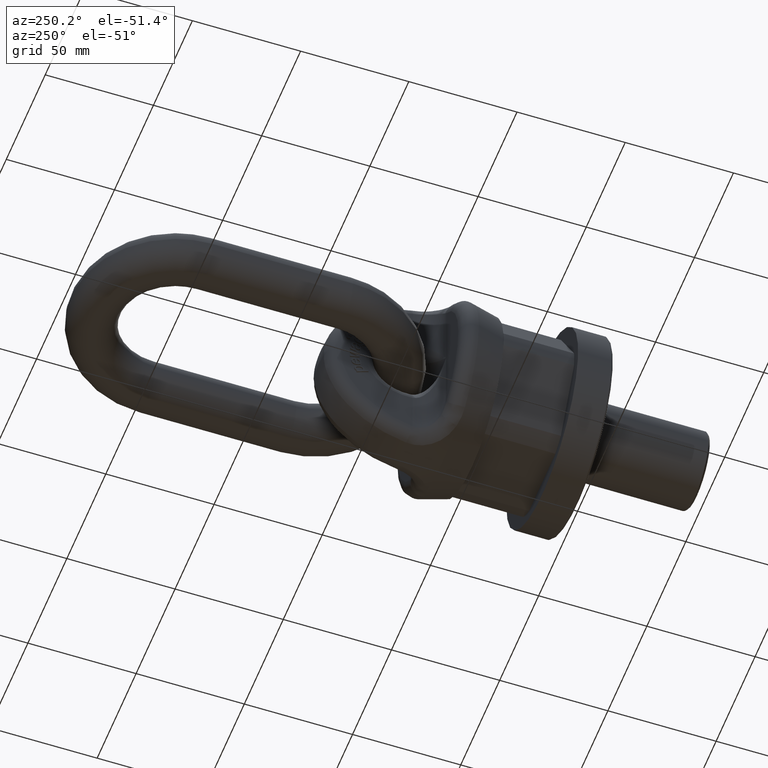
[diagram: clean part render]
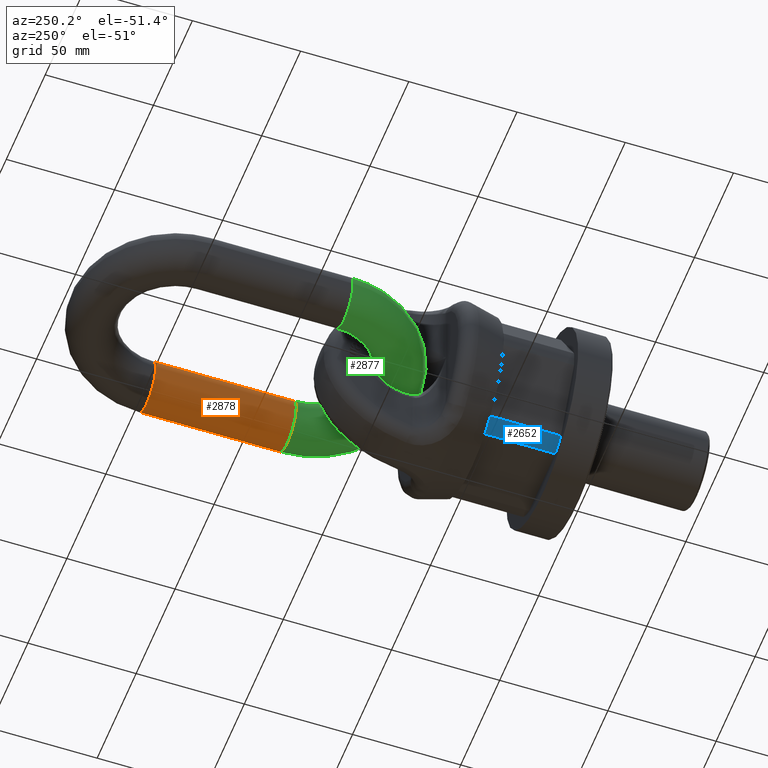
[diagram: same view with three faces highlighted in distinct colors, each labeled with its STEP entity id]
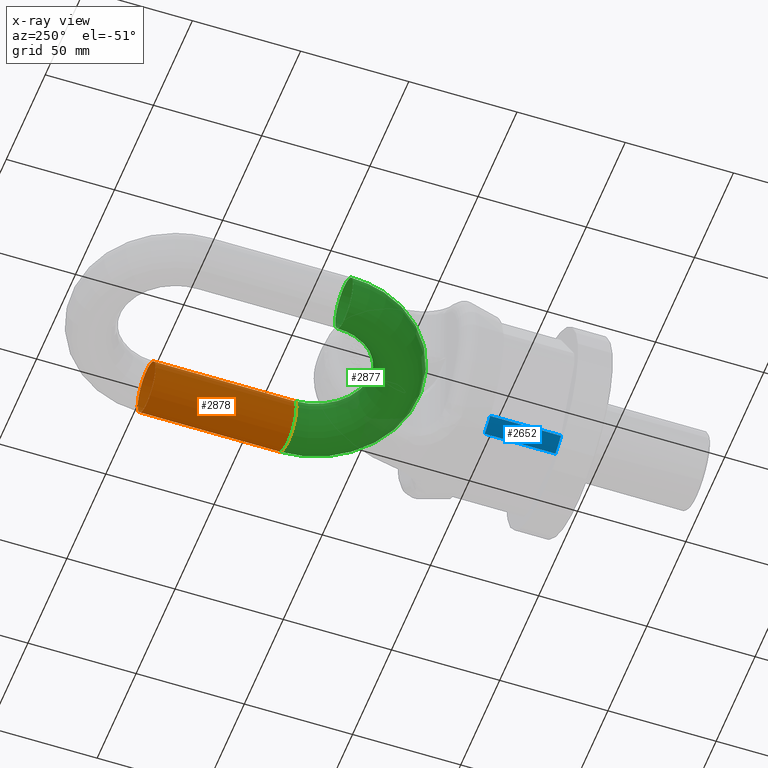
[diagram: x-ray of the same camera — body ghosted, the three highlighted faces saturated]
A machine part, auxiliary view with three faces highlighted in distinct colors.
The next image is the same camera in x-ray (body ghosted, the three faces saturated) — at least one of them is partly hidden behind the body in this view.
Their STEP definitions:

[orange] entity #2878 — the highlighted cylindrical surface (bore or boss wall) has radius 11.5 mm, axis along (-0, 1, 0).
#2032=CYLINDRICAL_SURFACE('',#5799,11.5);
#2878=ADVANCED_FACE('',(#3053,#3054),#2032,.T.);
#3053=FACE_BOUND('',#3339,.T.);
#3054=FACE_BOUND('',#3340,.T.);
#3339=EDGE_LOOP('',(#4531));
#3340=EDGE_LOOP('',(#4532));
#4531=ORIENTED_EDGE('',*,*,#5527,.F.);
#4532=ORIENTED_EDGE('',*,*,#5528,.T.);
#4931=VERTEX_POINT('',#9743);
#4932=VERTEX_POINT('',#9746);
#5527=EDGE_CURVE('',#4931,#4931,#5593,.T.);
#5528=EDGE_CURVE('',#4932,#4932,#5594,.T.);
#5593=CIRCLE('',#5796,11.5);
#5594=CIRCLE('',#5798,11.5);
#5796=AXIS2_PLACEMENT_3D('',#9742,#6551,#6552);
#5798=AXIS2_PLACEMENT_3D('',#9745,#6555,#6556);
#5799=AXIS2_PLACEMENT_3D('',#9747,#6557,#6558);
#6551=DIRECTION('',(2.18628534080031E-16,-1.,0.));
#6552=DIRECTION('',(1.,0.,0.));
#6555=DIRECTION('',(2.18628534080031E-16,-1.,0.));
#6556=DIRECTION('',(1.,0.,0.));
#6557=DIRECTION('',(-2.18628534080031E-16,1.,0.));
#6558=DIRECTION('',(-1.,0.,0.));
#9742=CARTESIAN_POINT('',(36.5000000000001,121.,0.));
#9743=CARTESIAN_POINT('',(48.,121.,0.));
#9745=CARTESIAN_POINT('',(36.5,186.,0.));
#9746=CARTESIAN_POINT('',(48.,186.,0.));
#9747=CARTESIAN_POINT('',(36.5000000000001,121.,0.));

[blue] entity #2652 — the highlighted cylindrical surface (partial cylindrical patch) has radius 41.1362 mm, axis along (-0, 1, 0).
#1810=FACE_OUTER_BOUND('',#3075,.T.);
#2018=CYLINDRICAL_SURFACE('',#5627,41.1362066797608);
#2042=LINE('',#6603,#2298);
#2046=LINE('',#6611,#2302);
#2298=VECTOR('',#5840,1.);
#2302=VECTOR('',#5846,1.);
#2652=ADVANCED_FACE('',(#1810),#2018,.T.);
#3075=EDGE_LOOP('',(#3416,#3417,#3418,#3419));
#3416=ORIENTED_EDGE('',*,*,#4943,.F.);
#3417=ORIENTED_EDGE('',*,*,#4952,.T.);
#3418=ORIENTED_EDGE('',*,*,#4967,.T.);
#3419=ORIENTED_EDGE('',*,*,#4956,.T.);
#4545=VERTEX_POINT('',#6583);
#4546=VERTEX_POINT('',#6585);
#4553=VERTEX_POINT('',#6604);
#4556=VERTEX_POINT('',#6612);
#4943=EDGE_CURVE('',#4545,#4546,#5535,.T.);
#4952=EDGE_CURVE('',#4545,#4553,#2042,.T.);
#4956=EDGE_CURVE('',#4556,#4546,#2046,.T.);
#4967=EDGE_CURVE('',#4553,#4556,#5539,.T.);
#5535=CIRCLE('',#5603,41.1362066797608);
#5539=CIRCLE('',#5615,41.1362066797608);
#5603=AXIS2_PLACEMENT_3D('',#6584,#5821,#5822);
#5615=AXIS2_PLACEMENT_3D('',#6633,#5865,#5866);
#5627=AXIS2_PLACEMENT_3D('',#6645,#5889,#5890);
#5821=DIRECTION('',(4.81111242522174E-17,-1.,0.));
#5822=DIRECTION('',(-1.,-8.43404687010335E-17,0.));
#5840=DIRECTION('',(-2.4492935982947E-17,1.,0.));
#5846=DIRECTION('',(2.4492935982947E-17,-1.,0.));
#5865=DIRECTION('',(0.,-1.,0.));
#5866=DIRECTION('',(0.,0.,-1.));
#5889=DIRECTION('',(-2.4492935982947E-17,1.,0.));
#5890=DIRECTION('',(-1.,-2.4492935982947E-17,0.));
#6583=CARTESIAN_POINT('',(-24.0211093553735,16.3333333333333,-33.394218142325));
#6584=CARTESIAN_POINT('',(-4.00051287721468E-16,16.3333333333333,0.));
#6585=CARTESIAN_POINT('',(-16.9096865730858,16.3333333333333,-37.5));
#6603=CARTESIAN_POINT('',(-24.0211093553735,2.07083935363145E-16,-33.394218142325));
#6604=CARTESIAN_POINT('',(-24.0211093553735,49.,-33.394218142325));
#6611=CARTESIAN_POINT('',(-16.9096865730858,-4.14167870726291E-16,-37.5));
#6612=CARTESIAN_POINT('',(-16.9096865730858,49.,-37.5));
#6633=CARTESIAN_POINT('',(-1.20015386316441E-15,49.,0.));
#6645=CARTESIAN_POINT('',(0.,0.,0.));

[green] entity #2877 — the highlighted toroidal blend (fillet) surface has major radius 36.5 mm and minor (blend) radius 11.5 mm.
#1796=TOROIDAL_SURFACE('',#5797,36.5,11.5);
#2877=ADVANCED_FACE('',(#3051,#3052),#1796,.T.);
#3051=FACE_BOUND('',#3337,.T.);
#3052=FACE_BOUND('',#3338,.T.);
#3337=EDGE_LOOP('',(#4529));
#3338=EDGE_LOOP('',(#4530));
#4529=ORIENTED_EDGE('',*,*,#5527,.T.);
#4530=ORIENTED_EDGE('',*,*,#5525,.F.);
#4929=VERTEX_POINT('',#9738);
#4931=VERTEX_POINT('',#9743);
#5525=EDGE_CURVE('',#4929,#4929,#5591,.T.);
#5527=EDGE_CURVE('',#4931,#4931,#5593,.T.);
#5591=CIRCLE('',#5793,11.5);
#5593=CIRCLE('',#5796,11.5);
#5793=AXIS2_PLACEMENT_3D('',#9737,#6545,#6546);
#5796=AXIS2_PLACEMENT_3D('',#9742,#6551,#6552);
#5797=AXIS2_PLACEMENT_3D('',#9744,#6553,#6554);
#6545=DIRECTION('',(-1.22927163369489E-15,1.,0.));
#6546=DIRECTION('',(-1.,-1.20676415720126E-15,0.));
#6551=DIRECTION('',(2.18628534080031E-16,-1.,0.));
#6552=DIRECTION('',(1.,0.,0.));
#6553=DIRECTION('',(0.,0.,-1.));
#6554=DIRECTION('',(-1.,0.,0.));
#9737=CARTESIAN_POINT('',(-36.5,121.,0.));
#9738=CARTESIAN_POINT('',(-48.,121.,0.));
#9742=CARTESIAN_POINT('',(36.5000000000001,121.,0.));
#9743=CARTESIAN_POINT('',(48.,121.,0.));
#9744=CARTESIAN_POINT('',(2.77555756156289E-14,121.,0.));